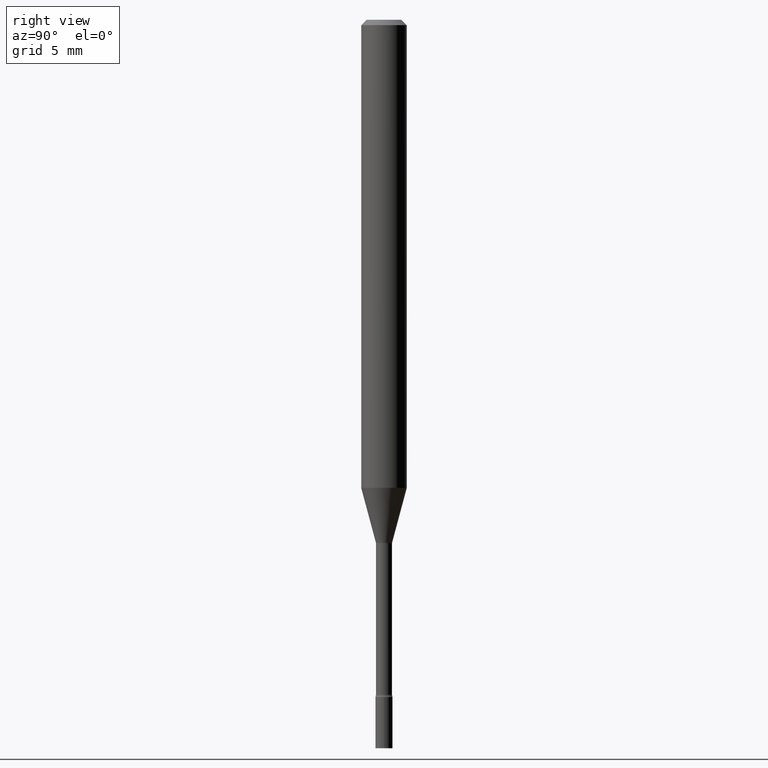
[diagram: clean part render]
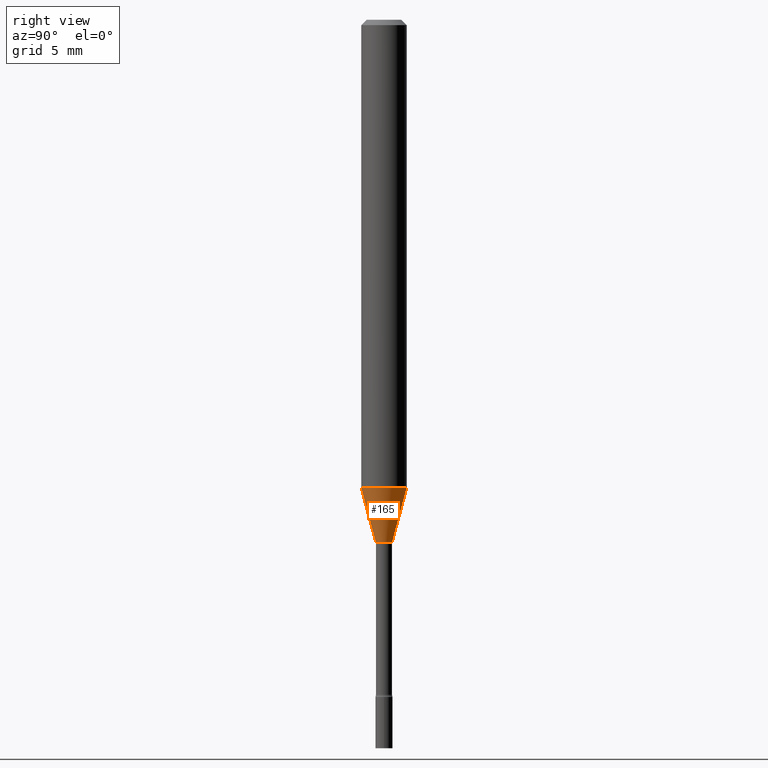
[diagram: same view with one face highlighted and labeled with its STEP entity id]
A machine part, right view. The second image highlights one B-rep face of the part: STEP entity #165.
In plain terms, the highlighted conical surface has half-angle 15 deg.
Its self-contained STEP definition (entity closure, byte-faithful):
#8 = DIRECTION ( 'NONE',  ( -6.982962677686266711E-15, -1.000000000000000000, 0.000000000000000000 ) ) ;
#15 = ORIENTED_EDGE ( 'NONE', *, *, #21, .F. ) ;
#21 = EDGE_CURVE ( 'NONE', #34, #157, #233, .T. ) ;
#30 = CARTESIAN_POINT ( 'NONE',  ( 4.440892098500937762E-16, 0.06249999999999548278, -1.285225147374218002 ) ) ;
#34 = VERTEX_POINT ( 'NONE', #200 ) ;
#81 = LINE ( 'NONE', #241, #124 ) ;
#88 = EDGE_CURVE ( 'NONE', #310, #34, #81, .T. ) ;
#124 = VECTOR ( 'NONE', #401, 39.37007874015748854 ) ;
#150 = DIRECTION ( 'NONE',  ( 1.839019923739596765E-15, 0.2588190451025244587, 0.9659258262890673130 ) ) ;
#157 = VERTEX_POINT ( 'NONE', #30 ) ;
#158 = CARTESIAN_POINT ( 'NONE',  ( 3.506992700505635745E-29, -5.007158444009865357E-15, -1.434092501787273211 ) ) ;
#162 = DIRECTION ( 'NONE',  ( -2.445443858143710310E-29, 3.491517065858421989E-15, 1.000000000000000000 ) ) ;
#165 = ADVANCED_FACE ( 'NONE', ( #192 ), #314, .T. ) ;
#187 = DIRECTION ( 'NONE',  ( -6.982962677686266711E-15, -1.000000000000000000, 0.000000000000000000 ) ) ;
#188 = LINE ( 'NONE', #343, #308 ) ;
#192 = FACE_OUTER_BOUND ( 'NONE', #217, .T. ) ;
#200 = CARTESIAN_POINT ( 'NONE',  ( -4.364351673553603122E-16, -0.06250000000000451028, -1.285225147374217336 ) ) ;
#217 = EDGE_LOOP ( 'NONE', ( #324, #497, #15, #402 ) ) ;
#222 = DIRECTION ( 'NONE',  ( -2.445443858143710310E-29, 3.491517065858421989E-15, 1.000000000000000000 ) ) ;
#224 = DIRECTION ( 'NONE',  ( -2.445443858143710310E-29, 3.491517065858421989E-15, 1.000000000000000000 ) ) ;
#233 = CIRCLE ( 'NONE', #516, 0.06250000000000000000 ) ;
#241 = CARTESIAN_POINT ( 'NONE',  ( -1.578925554262778977E-16, -0.02261111260566897943, -1.434092501787273211 ) ) ;
#258 = CARTESIAN_POINT ( 'NONE',  ( 3.142945942978125100E-29, -4.487385535527487373E-15, -1.285225147374217780 ) ) ;
#273 = VERTEX_POINT ( 'NONE', #462 ) ;
#301 = CARTESIAN_POINT ( 'NONE',  ( 3.506992700505635745E-29, -5.007158444009865357E-15, -1.434092501787273211 ) ) ;
#308 = VECTOR ( 'NONE', #150, 39.37007874015748143 ) ;
#310 = VERTEX_POINT ( 'NONE', #389 ) ;
#314 = CONICAL_SURFACE ( 'NONE', #387, 0.02261111260566396955, 0.2617993877991497409 ) ;
#323 = DIRECTION ( 'NONE',  ( -6.982962677686265922E-15, -1.000000000000000000, 4.370956789862821150E-15 ) ) ;
#324 = ORIENTED_EDGE ( 'NONE', *, *, #520, .T. ) ;
#343 = CARTESIAN_POINT ( 'NONE',  ( 1.606616180941166734E-16, 0.02261111260565896314, -1.434092501787273211 ) ) ;
#370 = AXIS2_PLACEMENT_3D ( 'NONE', #301, #222, #8 ) ;
#387 = AXIS2_PLACEMENT_3D ( 'NONE', #158, #224, #187 ) ;
#389 = CARTESIAN_POINT ( 'NONE',  ( -1.578925554262778977E-16, -0.02261111260566897943, -1.434092501787273211 ) ) ;
#401 = DIRECTION ( 'NONE',  ( -1.807323732225326589E-15, -0.2588190451025176864, 0.9659258262890690894 ) ) ;
#402 = ORIENTED_EDGE ( 'NONE', *, *, #88, .F. ) ;
#448 = EDGE_CURVE ( 'NONE', #273, #157, #188, .T. ) ;
#462 = CARTESIAN_POINT ( 'NONE',  ( 3.023754139721054467E-16, 0.02261111260565896661, -1.434092501787273211 ) ) ;
#468 = CIRCLE ( 'NONE', #370, 0.02261111260566396955 ) ;
#497 = ORIENTED_EDGE ( 'NONE', *, *, #448, .T. ) ;
#516 = AXIS2_PLACEMENT_3D ( 'NONE', #258, #162, #323 ) ;
#520 = EDGE_CURVE ( 'NONE', #310, #273, #468, .T. ) ;